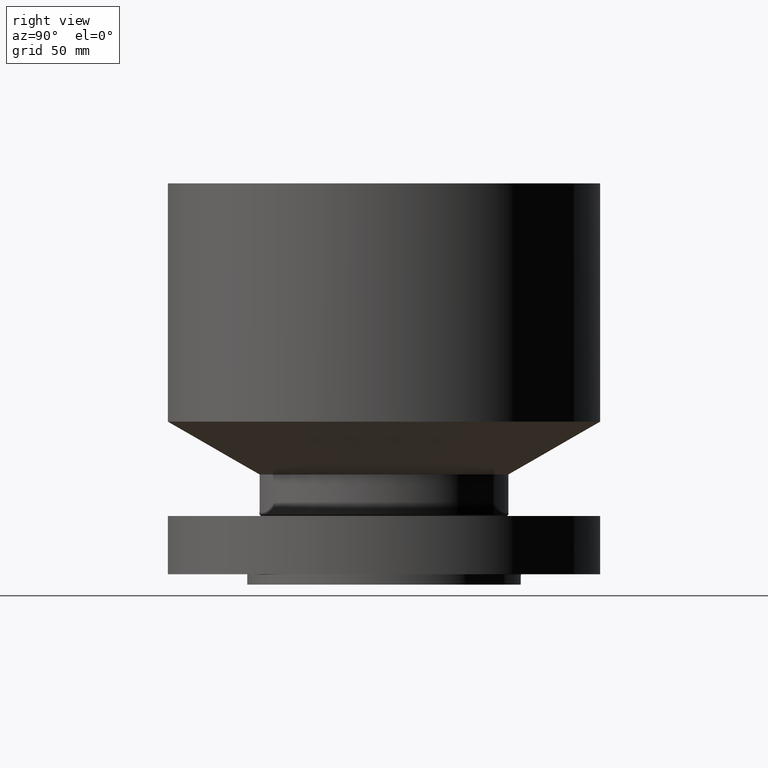
[diagram: clean part render]
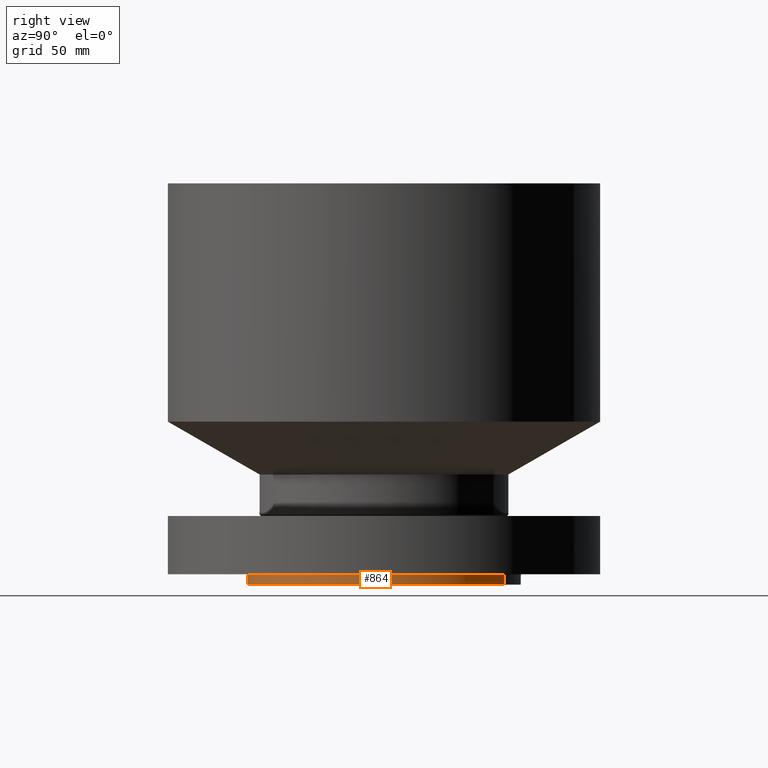
[diagram: same view with one face highlighted and labeled with its STEP entity id]
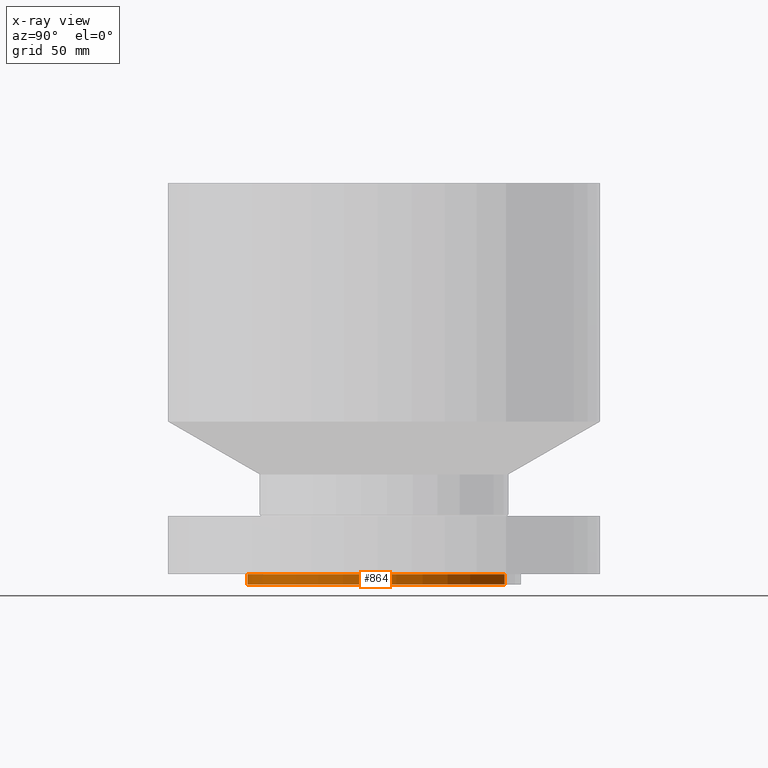
[diagram: x-ray of the same camera — body ghosted, the highlighted face saturated]
A machine part, right view. The second image highlights one B-rep face of the part: STEP entity #864.
The next image is the same camera in x-ray: the body ghosted, the highlighted face saturated — about 0% of this face is hidden behind the body in this view.
In plain terms, the highlighted cylindrical surface (partial cylindrical patch) has radius 104.775 mm, axis along (0, 0, -1).
Its self-contained STEP definition (entity closure, byte-faithful):
#109=AXIS2_PLACEMENT_3D('Circle Axis2P3D',#107,#108,$) ;
#824=AXIS2_PLACEMENT_3D('Circle Axis2P3D',#822,#823,$) ;
#839=AXIS2_PLACEMENT_3D('Cylinder Axis2P3D',#836,#837,#838) ;
#107=CARTESIAN_POINT('Axis2P3D Location',(0.,0.,0.)) ;
#111=CARTESIAN_POINT('Vertex',(1.97763034675,3.62002806781,0.)) ;
#113=CARTESIAN_POINT('Vertex',(-1.97763034675,-3.62002806781,0.)) ;
#817=CARTESIAN_POINT('Vertex',(-1.97763034675,-3.62002806781,-0.313000000001)) ;
#819=CARTESIAN_POINT('Vertex',(1.97763034675,3.62002806781,-0.313000000001)) ;
#822=CARTESIAN_POINT('Axis2P3D Location',(0.,0.,-0.313000000001)) ;
#836=CARTESIAN_POINT('Axis2P3D Location',(0.,0.,5.71850000002)) ;
#841=CARTESIAN_POINT('Line Origine',(-1.97763034675,-3.62002806781,-0.156500000001)) ;
#846=CARTESIAN_POINT('Line Origine',(1.97763034675,3.62002806781,-0.156500000001)) ;
#108=DIRECTION('Axis2P3D Direction',(0.,0.,-0.0393700787402)) ;
#823=DIRECTION('Axis2P3D Direction',(0.,0.,-0.0393700787402)) ;
#837=DIRECTION('Axis2P3D Direction',(0.,0.,-0.0393700787402)) ;
#838=DIRECTION('Axis2P3D XDirection',(0.0188750212049,0.0345504945626,0.)) ;
#842=DIRECTION('Vector Direction',(0.,0.,-0.0393700787402)) ;
#847=DIRECTION('Vector Direction',(0.,0.,-0.0393700787402)) ;
#843=VECTOR('Line Direction',#842,0.0393700787402) ;
#848=VECTOR('Line Direction',#847,0.0393700787402) ;
#859=ORIENTED_EDGE('',*,*,#826,.F.) ;
#860=ORIENTED_EDGE('',*,*,#850,.T.) ;
#861=ORIENTED_EDGE('',*,*,#115,.T.) ;
#862=ORIENTED_EDGE('',*,*,#845,.F.) ;
#864=ADVANCED_FACE('PartBody',(#863),#840,.T.) ;
#110=CIRCLE('generated circle',#109,4.12500000002) ;
#825=CIRCLE('generated circle',#824,4.12500000002) ;
#840=CYLINDRICAL_SURFACE('generated cylinder',#839,4.12500000002) ;
#115=EDGE_CURVE('',#112,#114,#110,.T.) ;
#826=EDGE_CURVE('',#820,#818,#825,.T.) ;
#845=EDGE_CURVE('',#818,#114,#844,.F.) ;
#850=EDGE_CURVE('',#820,#112,#849,.F.) ;
#858=EDGE_LOOP('',(#859,#860,#861,#862)) ;
#863=FACE_OUTER_BOUND('',#858,.T.) ;
#844=LINE('Line',#841,#843) ;
#849=LINE('Line',#846,#848) ;
#112=VERTEX_POINT('',#111) ;
#114=VERTEX_POINT('',#113) ;
#818=VERTEX_POINT('',#817) ;
#820=VERTEX_POINT('',#819) ;